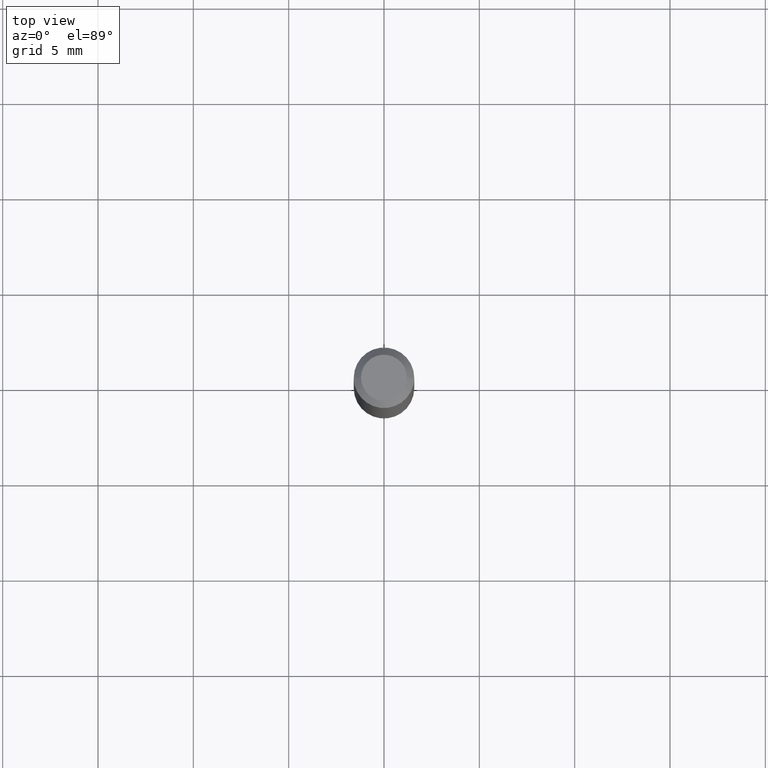
[diagram: clean part render]
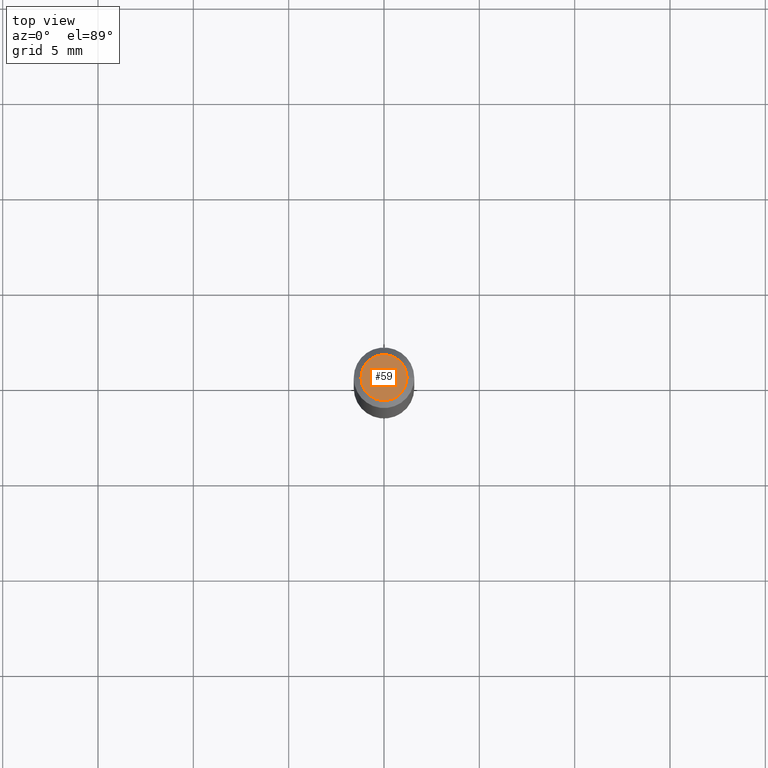
[diagram: same view with one face highlighted and labeled with its STEP entity id]
A machine part, top view. The second image highlights one B-rep face of the part: STEP entity #59.
In plain terms, the highlighted planar face has unit normal (0, -0, -1).
Its self-contained STEP definition (entity closure, byte-faithful):
#17 = EDGE_CURVE ( 'NONE', #451, #407, #268, .T. ) ;
#22 = ORIENTED_EDGE ( 'NONE', *, *, #401, .T. ) ;
#59 = ADVANCED_FACE ( 'NONE', ( #319 ), #422, .F. ) ;
#69 = DIRECTION ( 'NONE',  ( 2.438088387897960049E-29, -3.491481338843145188E-15, -1.000000000000000000 ) ) ;
#73 = CARTESIAN_POINT ( 'NONE',  ( -8.783475466943041190E-44, 1.254047510459085029E-29, 3.591734821858152800E-15 ) ) ;
#101 = DIRECTION ( 'NONE',  ( -1.000000000000000000, 6.982962677686265922E-15, -4.876176775795935793E-29 ) ) ;
#121 = CARTESIAN_POINT ( 'NONE',  ( -8.783475466943041190E-44, 1.254047510459085029E-29, 3.591734821858152800E-15 ) ) ;
#136 = DIRECTION ( 'NONE',  ( 1.000000000000000000, -6.982962677686267499E-15, 5.108144071313017768E-29 ) ) ;
#150 = AXIS2_PLACEMENT_3D ( 'NONE', #73, #218, #136 ) ;
#198 = CARTESIAN_POINT ( 'NONE',  ( 0.04749999999999999362, -4.035134999187516007E-16, 3.591734821858155166E-15 ) ) ;
#200 = DIRECTION ( 'NONE',  ( 1.000000000000000000, -6.982962677686267499E-15, 5.108144071313017768E-29 ) ) ;
#218 = DIRECTION ( 'NONE',  ( -2.445468806185136597E-29, 3.491481338843145583E-15, 1.000000000000000000 ) ) ;
#250 = EDGE_LOOP ( 'NONE', ( #22, #465 ) ) ;
#268 = CIRCLE ( 'NONE', #150, 0.04749999999999999362 ) ;
#281 = AXIS2_PLACEMENT_3D ( 'NONE', #414, #69, #101 ) ;
#306 = AXIS2_PLACEMENT_3D ( 'NONE', #121, #434, #200 ) ;
#319 = FACE_OUTER_BOUND ( 'NONE', #250, .T. ) ;
#401 = EDGE_CURVE ( 'NONE', #407, #451, #443, .T. ) ;
#402 = CARTESIAN_POINT ( 'NONE',  ( -0.04749999999999999362, 3.578768372314273615E-16, 3.591734821858150433E-15 ) ) ;
#407 = VERTEX_POINT ( 'NONE', #402 ) ;
#414 = CARTESIAN_POINT ( 'NONE',  ( 3.316907271900976096E-16, 0.04749999999999999362, 1.630022047334026855E-15 ) ) ;
#422 = PLANE ( 'NONE',  #281 ) ;
#434 = DIRECTION ( 'NONE',  ( -2.445468806185136597E-29, 3.491481338843145583E-15, 1.000000000000000000 ) ) ;
#443 = CIRCLE ( 'NONE', #306, 0.04749999999999999362 ) ;
#451 = VERTEX_POINT ( 'NONE', #198 ) ;
#465 = ORIENTED_EDGE ( 'NONE', *, *, #17, .T. ) ;